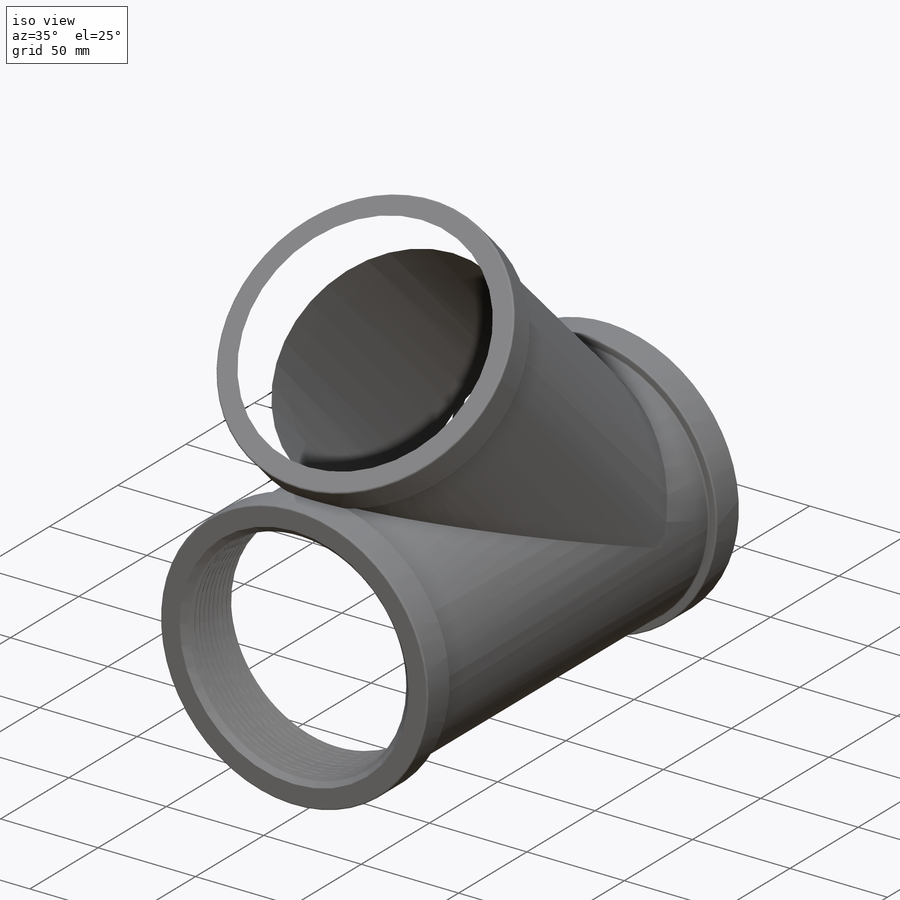
[diagram: iso view]
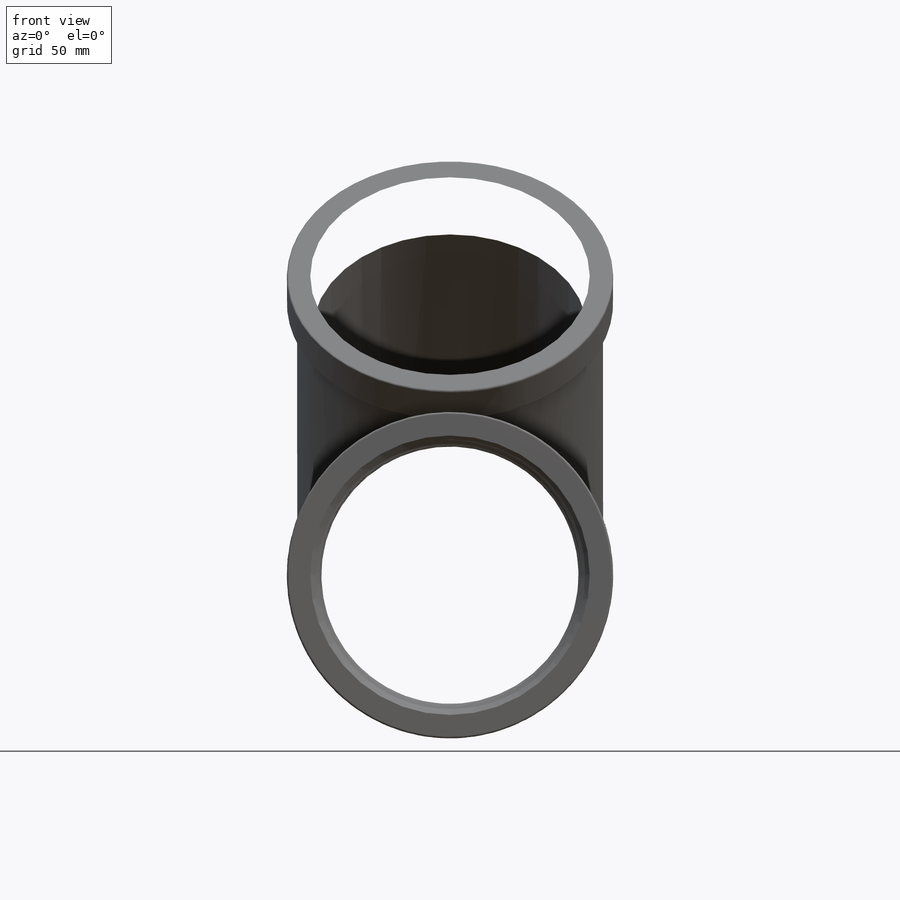
[diagram: front view]
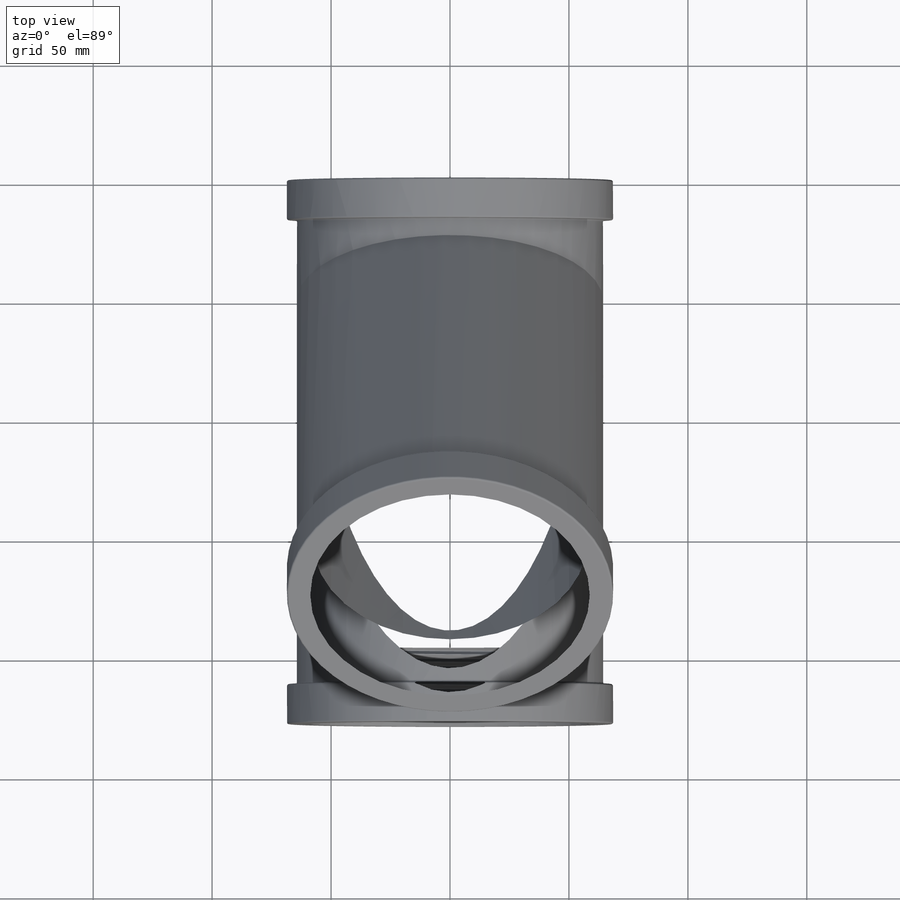
[diagram: top view]
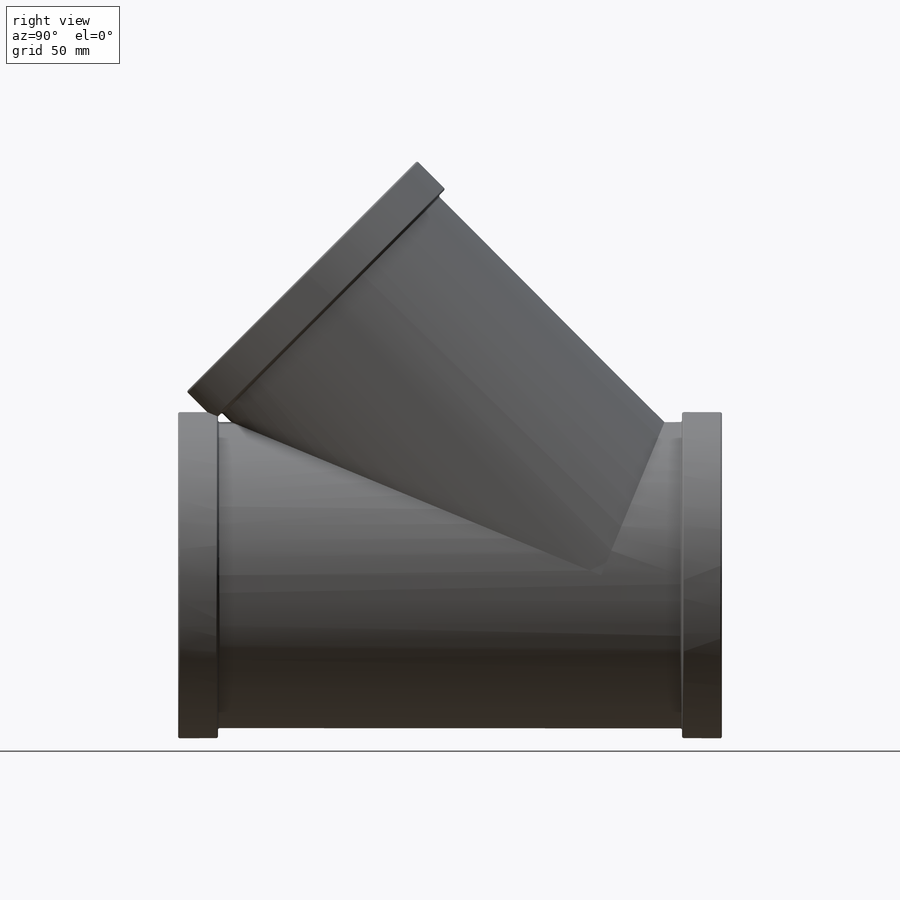
[diagram: right view]
SOLIDWORKS PART (.sldprt)
format: sldprt  version: not decoded by parser v0  size: 2,187,264 bytes
history: native  units: mm
features: sketch x9, pattern_circular x4, extrude x3, cut_extrude x3, fillet x2, material x1, helix x1, sweep x1 (+14 scaffold rows collapsed)
feature tree (38):
  scaffold x14  (default folders/planes/origin — collapsed)
  material  "Material <not specified>"
  sketch  "Sketch1"  dims[C=228.6mm B=137.16mm A=177.8mm D3=88.9mm Angle=45.0deg B Lenght=16.764mm Body OD=128.778mm ID=115.57mm Pipe OD=114.3mm L2=33.02mm T=50.8mm]
  sketch  "Sketch2"  dims[Body OD=~107.116945mm B=~132.966724mm]
  extrude  "Extrude1"  [1 undecoded]
  sketch  "Sketch3"
  extrude  "Extrude2"  [1 undecoded]
  sketch  "Sketch4"  dims[D1=0.0mm]
  extrude  "Extrude3"  [1 undecoded]
  fillet  "Fillet1"  Radius=0.79375mm
  pattern_circular  "CirPattern1"  Count=2 Angle=45deg
  fillet  "Axis2"  [1 undecoded]
  pattern_circular  "CirPattern2"  Count=2 Angle=180deg
  sketch  "Sketch5"
  cut_extrude  "Extrude4"  A=1.783333deg  [1 undecoded]
  sketch  "Sketch6"  dims[D1=0.0mm]
  helix  "Helix/Spiral1"  Pitch=36.195mm L=36.195mm A=1.783333deg
  sketch  "Sketch7"  dims[c1.D1=3.175mm c1.D2=~0.396875mm c1.D3=~2.778125mm c1.D4=~1.612148mm c2.D4=60.0deg]
  sweep  "Sweep1"
  sketch  "Sketch8"  dims[D2=1.5875mm D1=0.0mm]
  cut_extrude  "Extrude5"  [1 undecoded]
  sketch  "Sketch9"
  cut_extrude  "Extrude6"  [1 undecoded]
  pattern_circular  "CirPattern3"  Count=2 Angle=45deg
  pattern_circular  "CirPattern4"  Count=2 Angle=180deg
decode coverage: 13 of 23 modeling features carry decoded parameters
note: ~ marks probable driven/reference dimensions
note: 7 parameter values undecoded
summary: no parameter record found for 7 features
note: suppression state not decoded; provenance and decode notes live in map.json
